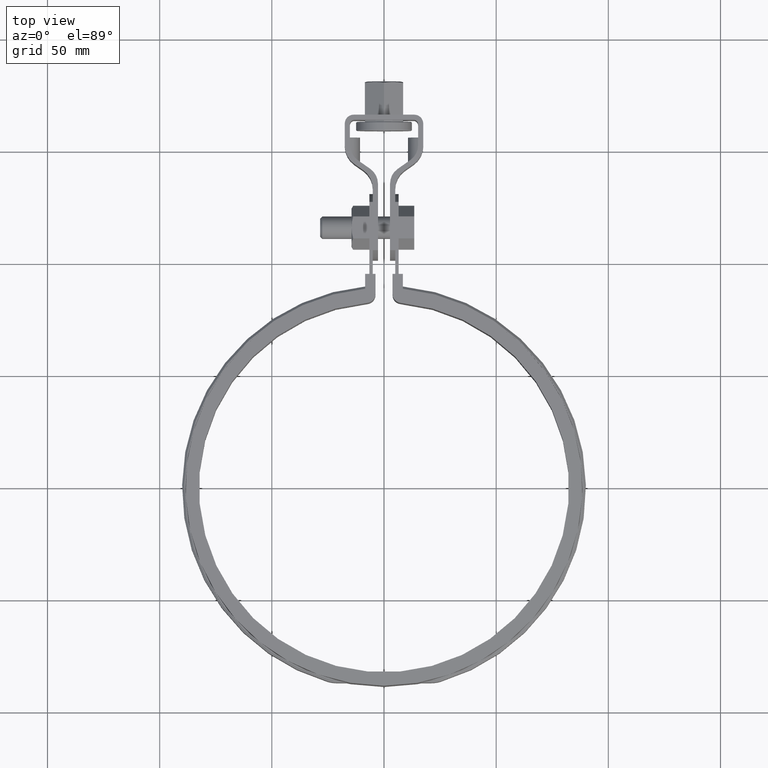
[diagram: clean part render]
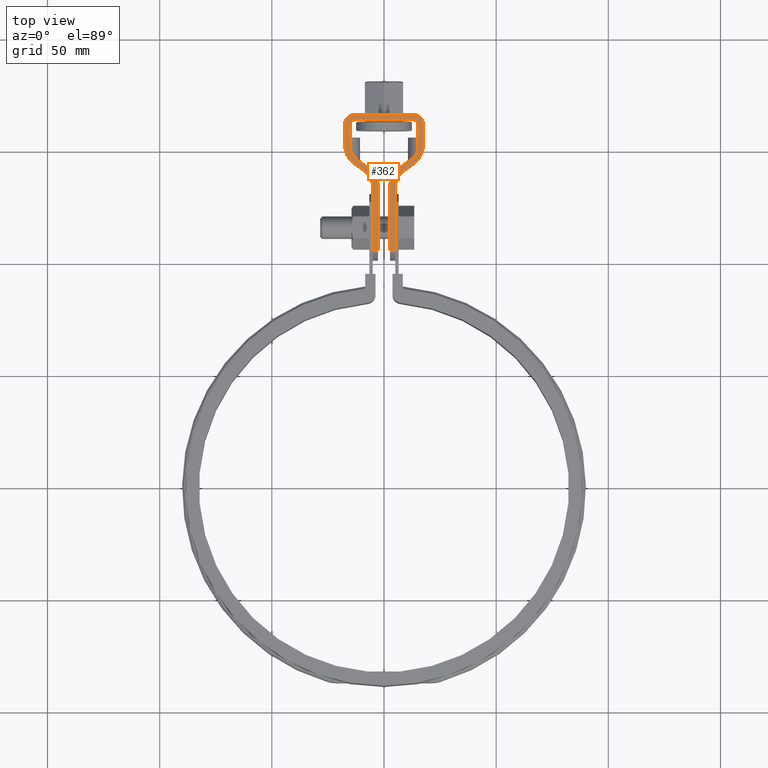
[diagram: same view with one face highlighted and labeled with its STEP entity id]
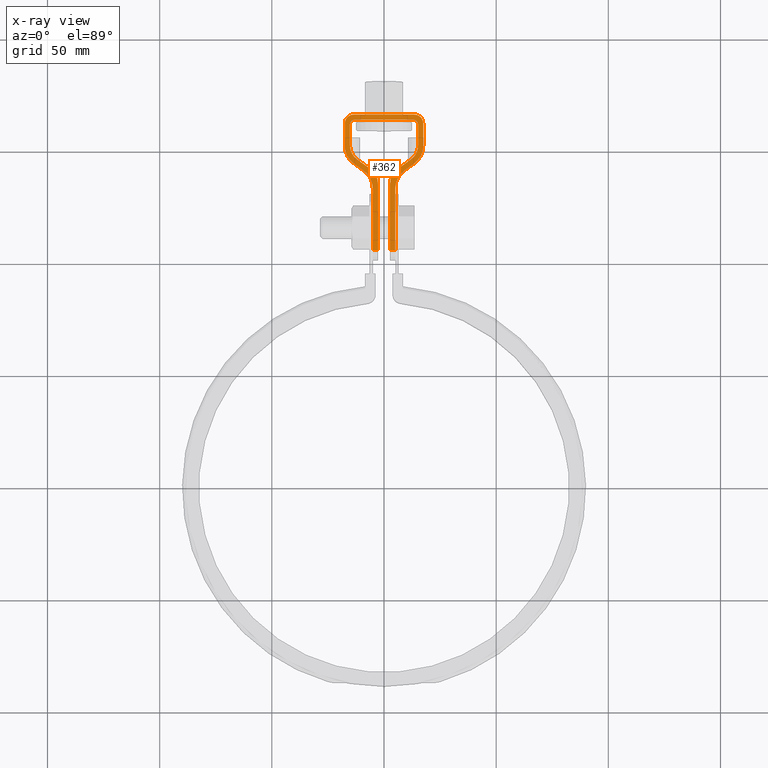
[diagram: x-ray of the same camera — body ghosted, the highlighted face saturated]
A machine part, top view. The second image highlights one B-rep face of the part: STEP entity #362.
The next image is the same camera in x-ray: the body ghosted, the highlighted face saturated — about 0% of this face is hidden behind the body in this view.
In plain terms, the highlighted planar face has unit normal (-0, 0, 1).
Its self-contained STEP definition (entity closure, byte-faithful):
#362 = ADVANCED_FACE( '', ( #594 ), #595, .T. );
#594 = FACE_OUTER_BOUND( '', #1356, .T. );
#595 = PLANE( '', #1357 );
#1356 = EDGE_LOOP( '', ( #3159, #3160, #3161, #3162, #3163, #3164, #3165, #3166, #3167, #3168, #3169, #3170, #3171, #3172, #3173, #3174, #3175, #3176, #3177, #3178, #3179, #3180, #3181, #3182, #3183, #3184, #3185, #3186 ) );
#1357 = AXIS2_PLACEMENT_3D( '', #3187, #3188, #3189 );
#3159 = ORIENTED_EDGE( '', *, *, #5114, .T. );
#3160 = ORIENTED_EDGE( '', *, *, #5115, .T. );
#3161 = ORIENTED_EDGE( '', *, *, #5116, .T. );
#3162 = ORIENTED_EDGE( '', *, *, #5117, .T. );
#3163 = ORIENTED_EDGE( '', *, *, #5118, .T. );
#3164 = ORIENTED_EDGE( '', *, *, #5112, .T. );
#3165 = ORIENTED_EDGE( '', *, *, #5108, .T. );
#3166 = ORIENTED_EDGE( '', *, *, #5119, .T. );
#3167 = ORIENTED_EDGE( '', *, *, #5120, .T. );
#3168 = ORIENTED_EDGE( '', *, *, #5102, .T. );
#3169 = ORIENTED_EDGE( '', *, *, #5095, .T. );
#3170 = ORIENTED_EDGE( '', *, *, #5085, .T. );
#3171 = ORIENTED_EDGE( '', *, *, #5094, .T. );
#3172 = ORIENTED_EDGE( '', *, *, #5099, .T. );
#3173 = ORIENTED_EDGE( '', *, *, #5121, .T. );
#3174 = ORIENTED_EDGE( '', *, *, #5122, .T. );
#3175 = ORIENTED_EDGE( '', *, *, #5123, .T. );
#3176 = ORIENTED_EDGE( '', *, *, #5124, .T. );
#3177 = ORIENTED_EDGE( '', *, *, #5125, .T. );
#3178 = ORIENTED_EDGE( '', *, *, #5055, .T. );
#3179 = ORIENTED_EDGE( '', *, *, #5052, .T. );
#3180 = ORIENTED_EDGE( '', *, *, #5042, .T. );
#3181 = ORIENTED_EDGE( '', *, *, #5126, .T. );
#3182 = ORIENTED_EDGE( '', *, *, #5127, .T. );
#3183 = ORIENTED_EDGE( '', *, *, #5128, .T. );
#3184 = ORIENTED_EDGE( '', *, *, #5089, .T. );
#3185 = ORIENTED_EDGE( '', *, *, #5129, .T. );
#3186 = ORIENTED_EDGE( '', *, *, #5130, .T. );
#3187 = CARTESIAN_POINT( '', ( 13.4999999999999, 162.102813742387, -6.90419943438678E-013 ) );
#3188 = DIRECTION( '', ( -9.11521279052786E-016, 1.75137682134619E-013, 1.00000000000000 ) );
#3189 = DIRECTION( '', ( -3.03451482752472E-016, 1.00000000000000, -1.75137682134619E-013 ) );
#5042 = EDGE_CURVE( '', #5566, #5567, #5568, .T. );
#5052 = EDGE_CURVE( '', #5575, #5566, #5586, .T. );
#5055 = EDGE_CURVE( '', #5588, #5575, #5591, .T. );
#5085 = EDGE_CURVE( '', #5643, #5641, #5644, .T. );
#5089 = EDGE_CURVE( '', #5646, #5648, #5650, .T. );
#5094 = EDGE_CURVE( '', #5641, #5656, #5658, .T. );
#5095 = EDGE_CURVE( '', #5659, #5643, #5660, .T. );
#5099 = EDGE_CURVE( '', #5656, #5665, #5666, .T. );
#5102 = EDGE_CURVE( '', #5670, #5659, #5671, .T. );
#5108 = EDGE_CURVE( '', #5681, #5679, #5682, .T. );
#5112 = EDGE_CURVE( '', #5686, #5681, #5687, .T. );
#5114 = EDGE_CURVE( '', #5689, #5690, #5691, .T. );
#5115 = EDGE_CURVE( '', #5690, #5692, #5693, .F. );
#5116 = EDGE_CURVE( '', #5692, #5694, #5695, .T. );
#5117 = EDGE_CURVE( '', #5694, #5696, #5697, .T. );
#5118 = EDGE_CURVE( '', #5696, #5686, #5698, .T. );
#5119 = EDGE_CURVE( '', #5679, #5699, #5700, .T. );
#5120 = EDGE_CURVE( '', #5699, #5670, #5701, .T. );
#5121 = EDGE_CURVE( '', #5665, #5702, #5703, .T. );
#5122 = EDGE_CURVE( '', #5702, #5704, #5705, .F. );
#5123 = EDGE_CURVE( '', #5704, #5706, #5707, .T. );
#5124 = EDGE_CURVE( '', #5706, #5708, #5709, .T. );
#5125 = EDGE_CURVE( '', #5708, #5588, #5710, .T. );
#5126 = EDGE_CURVE( '', #5567, #5711, #5712, .T. );
#5127 = EDGE_CURVE( '', #5711, #5713, #5714, .T. );
#5128 = EDGE_CURVE( '', #5713, #5646, #5715, .T. );
#5129 = EDGE_CURVE( '', #5648, #5716, #5717, .T. );
#5130 = EDGE_CURVE( '', #5716, #5689, #5718, .T. );
#5566 = VERTEX_POINT( '', #7395 );
#5567 = VERTEX_POINT( '', #7396 );
#5568 = CIRCLE( '', #7397, 3.99999999999999 );
#5575 = VERTEX_POINT( '', #7406 );
#5586 = LINE( '', #7423, #7424 );
#5588 = VERTEX_POINT( '', #7426 );
#5591 = CIRCLE( '', #7449, 9.99999999999866 );
#5641 = VERTEX_POINT( '', #7613 );
#5643 = VERTEX_POINT( '', #7616 );
#5644 = CIRCLE( '', #7617, 7.99999999999997 );
#5646 = VERTEX_POINT( '', #7620 );
#5648 = VERTEX_POINT( '', #7623 );
#5650 = CIRCLE( '', #7626, 9.99999999999996 );
#5656 = VERTEX_POINT( '', #7634 );
#5658 = LINE( '', #7637, #7638 );
#5659 = VERTEX_POINT( '', #7639 );
#5660 = LINE( '', #7640, #7641 );
#5665 = VERTEX_POINT( '', #7649 );
#5666 = CIRCLE( '', #7650, 7.99999999999892 );
#5670 = VERTEX_POINT( '', #7655 );
#5671 = CIRCLE( '', #7656, 1.99999999999960 );
#5679 = VERTEX_POINT( '', #7667 );
#5681 = VERTEX_POINT( '', #7670 );
#5682 = LINE( '', #7671, #7672 );
#5686 = VERTEX_POINT( '', #7679 );
#5687 = CIRCLE( '', #7680, 7.99999999999892 );
#5689 = VERTEX_POINT( '', #7683 );
#5690 = VERTEX_POINT( '', #7684 );
#5691 = LINE( '', #7685, #7686 );
#5692 = VERTEX_POINT( '', #7687 );
#5693 = LINE( '', #7688, #7689 );
#5694 = VERTEX_POINT( '', #7690 );
#5695 = LINE( '', #7691, #7692 );
#5696 = VERTEX_POINT( '', #7693 );
#5697 = CIRCLE( '', #7694, 7.99999999999997 );
#5698 = LINE( '', #7695, #7696 );
#5699 = VERTEX_POINT( '', #7697 );
#5700 = CIRCLE( '', #7698, 1.99999999999999 );
#5701 = LINE( '', #7699, #7700 );
#5702 = VERTEX_POINT( '', #7701 );
#5703 = LINE( '', #7702, #7703 );
#5704 = VERTEX_POINT( '', #7704 );
#5705 = LINE( '', #7705, #7706 );
#5706 = VERTEX_POINT( '', #7707 );
#5707 = LINE( '', #7708, #7709 );
#5708 = VERTEX_POINT( '', #7710 );
#5709 = CIRCLE( '', #7711, 9.99999999999996 );
#5710 = LINE( '', #7712, #7713 );
#5711 = VERTEX_POINT( '', #7714 );
#5712 = LINE( '', #7715, #7716 );
#5713 = VERTEX_POINT( '', #7717 );
#5714 = CIRCLE( '', #7718, 3.99999999999920 );
#5715 = LINE( '', #7719, #7720 );
#5716 = VERTEX_POINT( '', #7721 );
#5717 = LINE( '', #7722, #7723 );
#5718 = CIRCLE( '', #7724, 9.99999999999866 );
#7395 = CARTESIAN_POINT( '', ( 17.4999999999999, 162.102813742387, -6.86950496486725E-013 ) );
#7396 = CARTESIAN_POINT( '', ( 13.4999999999999, 166.102813742386, -1.39124822773321E-012 ) );
#7397 = AXIS2_PLACEMENT_3D( '', #9585, #9586, #9587 );
#7406 = CARTESIAN_POINT( '', ( 17.4999999999999, 152.308484247907, 1.02695629777813E-012 ) );
#7423 = CARTESIAN_POINT( '', ( 17.4999999999999, 152.308484247907, 1.02695629777813E-012 ) );
#7424 = VECTOR( '', #9599, 999.999999999934 );
#7426 = CARTESIAN_POINT( '', ( 13.2357643635104, 144.116963805018, 2.45636844198283E-012 ) );
#7449 = AXIS2_PLACEMENT_3D( '', #9601, #9602, #9603 );
#7613 = CARTESIAN_POINT( '', ( 11.7886114908083, 145.911438008762, 2.14064876935510E-012 ) );
#7616 = CARTESIAN_POINT( '', ( 15.1999999999999, 152.464654363072, 9.95731275210555E-013 ) );
#7617 = AXIS2_PLACEMENT_3D( '', #9651, #9652, #9653 );
#7620 = CARTESIAN_POINT( '', ( -17.4999999999999, 152.308484247907, 9.92261828258602E-013 ) );
#7623 = CARTESIAN_POINT( '', ( -13.2357643635104, 144.116963805018, 2.43555176027111E-012 ) );
#7626 = AXIS2_PLACEMENT_3D( '', #9657, #9658, #9659 );
#7634 = CARTESIAN_POINT( '', ( 6.11138850919161, 141.936203680937, 2.83453815974573E-012 ) );
#7637 = CARTESIAN_POINT( '', ( 11.7886114908083, 145.911438008761, 2.14064876935510E-012 ) );
#7638 = VECTOR( '', #9666, 1000.00000000006 );
#7639 = CARTESIAN_POINT( '', ( 15.1999999999999, 161.802813742387, -6.38378239159380E-013 ) );
#7640 = CARTESIAN_POINT( '', ( 15.1999999999999, 161.802813742387, -6.38378239159380E-013 ) );
#7641 = VECTOR( '', #9667, 999.999999999934 );
#7649 = CARTESIAN_POINT( '', ( 2.69999999999999, 135.382987326626, 3.97945565389027E-012 ) );
#7650 = AXIS2_PLACEMENT_3D( '', #9671, #9672, #9673 );
#7655 = CARTESIAN_POINT( '', ( 13.1999999999999, 163.802813742387, -9.92261828258602E-013 ) );
#7656 = AXIS2_PLACEMENT_3D( '', #9678, #9679, #9680 );
#7667 = CARTESIAN_POINT( '', ( -15.2000000000000, 161.802813742387, -6.66133814775006E-013 ) );
#7670 = CARTESIAN_POINT( '', ( -15.2000000000000, 152.464654363072, 9.67975699594930E-013 ) );
#7671 = CARTESIAN_POINT( '', ( -15.2000000000000, 152.464654363072, 9.67975699594930E-013 ) );
#7672 = VECTOR( '', #9688, 999.999999999934 );
#7679 = CARTESIAN_POINT( '', ( -11.7886114908083, 145.911438008761, 2.11983208764338E-012 ) );
#7680 = AXIS2_PLACEMENT_3D( '', #9692, #9693, #9694 );
#7683 = CARTESIAN_POINT( '', ( -4.99999999999996, 133.144549009254, 4.36456426555707E-012 ) );
#7684 = CARTESIAN_POINT( '', ( -4.99999999999997, 105.725658661499, 9.14893161230047E-012 ) );
#7685 = CARTESIAN_POINT( '', ( -4.99999999999999, 133.144549009254, 4.36456426555707E-012 ) );
#7686 = VECTOR( '', #9696, 999.999999999934 );
#7687 = CARTESIAN_POINT( '', ( -2.69999999999999, 105.725658661499, 9.16627884706023E-012 ) );
#7688 = CARTESIAN_POINT( '', ( 81.1487655465074, 105.725658661499, 9.24260668000320E-012 ) );
#7689 = VECTOR( '', #9697, 1000.00000000013 );
#7690 = CARTESIAN_POINT( '', ( -2.70000000000000, 135.382987326626, 3.97251675998636E-012 ) );
#7691 = CARTESIAN_POINT( '', ( -2.69999999999999, 101.102813742399, 9.97465998686532E-012 ) );
#7692 = VECTOR( '', #9698, 999.999999999934 );
#7693 = CARTESIAN_POINT( '', ( -6.11138850919161, 141.936203680937, 2.82066037193791E-012 ) );
#7694 = AXIS2_PLACEMENT_3D( '', #9699, #9700, #9701 );
#7695 = CARTESIAN_POINT( '', ( -6.11138850919164, 141.936203680937, 2.82066037193791E-012 ) );
#7696 = VECTOR( '', #9702, 1000.00000000006 );
#7697 = CARTESIAN_POINT( '', ( -13.2000000000000, 163.802813742387, -1.01307850997032E-012 ) );
#7698 = AXIS2_PLACEMENT_3D( '', #9703, #9704, #9705 );
#7699 = CARTESIAN_POINT( '', ( -13.2000000000000, 163.802813742387, -1.01307850997032E-012 ) );
#7700 = VECTOR( '', #9706, 1000.00000000013 );
#7701 = CARTESIAN_POINT( '', ( 2.70000000000000, 105.725658661499, 9.15933995315633E-012 ) );
#7702 = CARTESIAN_POINT( '', ( 2.69999999999998, 135.382987326626, 3.97945565389027E-012 ) );
#7703 = VECTOR( '', #9707, 999.999999999934 );
#7704 = CARTESIAN_POINT( '', ( 4.99999999999998, 105.725658661499, 9.17321774096414E-012 ) );
#7705 = CARTESIAN_POINT( '', ( 81.1487655465074, 105.725658661499, 9.24260668000320E-012 ) );
#7706 = VECTOR( '', #9708, 1000.00000000013 );
#7707 = CARTESIAN_POINT( '', ( 4.99999999999998, 133.144549009254, 4.37150315946097E-012 ) );
#7708 = CARTESIAN_POINT( '', ( 4.99999999999998, 101.102813742399, 9.98159888076922E-012 ) );
#7709 = VECTOR( '', #9709, 999.999999999934 );
#7710 = CARTESIAN_POINT( '', ( 9.26423563648950, 141.336069452142, 2.93862156830432E-012 ) );
#7711 = AXIS2_PLACEMENT_3D( '', #9710, #9711, #9712 );
#7712 = CARTESIAN_POINT( '', ( 9.26423563648948, 141.336069452142, 2.93862156830432E-012 ) );
#7713 = VECTOR( '', #9713, 1000.00000000006 );
#7714 = CARTESIAN_POINT( '', ( -13.5000000000000, 166.102813742386, -1.41900380334884E-012 ) );
#7715 = CARTESIAN_POINT( '', ( 13.4999999999999, 166.102813742386, -1.39124822773321E-012 ) );
#7716 = VECTOR( '', #9714, 1000.00000000013 );
#7717 = CARTESIAN_POINT( '', ( -17.5000000000000, 162.102813742387, -7.21644966006256E-013 ) );
#7718 = AXIS2_PLACEMENT_3D( '', #9715, #9716, #9717 );
#7719 = CARTESIAN_POINT( '', ( -17.5000000000000, 162.102813742387, -7.21644966006256E-013 ) );
#7720 = VECTOR( '', #9718, 999.999999999934 );
#7721 = CARTESIAN_POINT( '', ( -9.26423563648951, 141.336069452142, 2.92474378049651E-012 ) );
#7722 = CARTESIAN_POINT( '', ( -13.2357643635104, 144.116963805018, 2.43555176027111E-012 ) );
#7723 = VECTOR( '', #9719, 1000.00000000006 );
#7724 = AXIS2_PLACEMENT_3D( '', #9720, #9721, #9722 );
#9585 = CARTESIAN_POINT( '', ( 13.4999999999999, 162.102813742387, -6.90419943438678E-013 ) );
#9586 = DIRECTION( '', ( -9.11521279052786E-016, 1.75137682134619E-013, 1.00000000000000 ) );
#9587 = DIRECTION( '', ( 1.00000000000000, 8.66110482555733E-017, 9.11521279052771E-016 ) );
#9599 = DIRECTION( '', ( -2.34062543713386E-016, 1.00000000000000, -1.75137682134619E-013 ) );
#9601 = CARTESIAN_POINT( '', ( 7.49999999999996, 152.308484247907, 1.01654795692227E-012 ) );
#9602 = DIRECTION( '', ( -9.11521279052776E-016, 1.75137682134619E-013, 1.00000000000000 ) );
#9603 = DIRECTION( '', ( 0.573576436351121, -0.819152044288939, 1.43987217479497E-013 ) );
#9651 = CARTESIAN_POINT( '', ( 7.19999999999996, 152.464654363072, 9.88792381306649E-013 ) );
#9652 = DIRECTION( '', ( 9.11521279052786E-016, -1.75137682134619E-013, -1.00000000000000 ) );
#9653 = DIRECTION( '', ( 1.00000000000000, 3.03451482752632E-016, 9.11521279052733E-016 ) );
#9657 = CARTESIAN_POINT( '', ( -7.49999999999998, 152.308484247907, 1.00267016911446E-012 ) );
#9658 = DIRECTION( '', ( -9.11521279052786E-016, 1.75137682134619E-013, 1.00000000000000 ) );
#9659 = DIRECTION( '', ( -1.00000000000000, -4.76923830350279E-016, -9.11521279052702E-016 ) );
#9666 = DIRECTION( '', ( -0.819152044289044, -0.573576436350971, 9.97081730703950E-014 ) );
#9667 = DIRECTION( '', ( 2.42736161093272E-016, -1.00000000000000, 1.75137682134619E-013 ) );
#9671 = CARTESIAN_POINT( '', ( 10.7000000000000, 135.382987326626, 3.98639454779417E-012 ) );
#9672 = DIRECTION( '', ( -9.11521279052808E-016, 1.75137682134619E-013, 1.00000000000000 ) );
#9673 = DIRECTION( '', ( -0.573576436351121, 0.819152044288939, -1.43987217479497E-013 ) );
#9678 = CARTESIAN_POINT( '', ( 13.1999999999999, 161.802813742387, -6.41847686111334E-013 ) );
#9679 = DIRECTION( '', ( 9.11521279052786E-016, -1.75137682134619E-013, -1.00000000000000 ) );
#9680 = DIRECTION( '', ( -3.03451482752472E-016, 1.00000000000000, -1.75137682134619E-013 ) );
#9688 = DIRECTION( '', ( -2.42736161093272E-016, 1.00000000000000, -1.75137682134619E-013 ) );
#9692 = CARTESIAN_POINT( '', ( -7.20000000000000, 152.464654363072, 9.74914593498836E-013 ) );
#9693 = DIRECTION( '', ( 9.11521279052757E-016, -1.75137682134619E-013, -1.00000000000000 ) );
#9694 = DIRECTION( '', ( -0.573576436351121, -0.819152044288940, 1.42941563225702E-013 ) );
#9696 = DIRECTION( '', ( 2.42736161093272E-016, -1.00000000000000, 1.75137682134619E-013 ) );
#9697 = DIRECTION( '', ( -1.00000000000000, -3.03451482752664E-016, -1.09521223212605E-015 ) );
#9698 = DIRECTION( '', ( -2.42736161093272E-016, 1.00000000000000, -1.75137682134619E-013 ) );
#9699 = CARTESIAN_POINT( '', ( -10.7000000000000, 135.382987326626, 3.96557786608246E-012 ) );
#9700 = DIRECTION( '', ( -9.11521279052786E-016, 1.75137682134619E-013, 1.00000000000000 ) );
#9701 = DIRECTION( '', ( 1.00000000000000, 3.03451482752632E-016, 9.11521279052733E-016 ) );
#9702 = DIRECTION( '', ( -0.819152044289045, 0.573576436350971, -1.01201522108693E-013 ) );
#9703 = CARTESIAN_POINT( '', ( -13.2000000000000, 161.802813742387, -6.62664367823052E-013 ) );
#9704 = DIRECTION( '', ( 9.11521279052786E-016, -1.75137682134619E-013, -1.00000000000000 ) );
#9705 = DIRECTION( '', ( -1.00000000000000, -3.03451482752632E-016, -9.11521279052733E-016 ) );
#9706 = DIRECTION( '', ( 1.00000000000000, 3.03451482752632E-016, 9.11521279052733E-016 ) );
#9707 = DIRECTION( '', ( 2.42736161093272E-016, -1.00000000000000, 1.75137682134619E-013 ) );
#9708 = DIRECTION( '', ( -1.00000000000000, -3.03451482752664E-016, -1.09521223212605E-015 ) );
#9709 = DIRECTION( '', ( -2.42736161093272E-016, 1.00000000000000, -1.75137682134619E-013 ) );
#9710 = CARTESIAN_POINT( '', ( 14.9999999999999, 133.144549009254, 4.38191150031683E-012 ) );
#9711 = DIRECTION( '', ( 9.11521279052786E-016, -1.75137682134619E-013, -1.00000000000000 ) );
#9712 = DIRECTION( '', ( -1.00000000000000, -3.03451482752632E-016, -9.11521279052733E-016 ) );
#9713 = DIRECTION( '', ( 0.819152044289044, 0.573576436350971, -9.97081730703950E-014 ) );
#9714 = DIRECTION( '', ( -1.00000000000000, -3.03451482752632E-016, -9.11521279052733E-016 ) );
#9715 = CARTESIAN_POINT( '', ( -13.5000000000000, 162.102813742387, -7.18175519054303E-013 ) );
#9716 = DIRECTION( '', ( -9.11521279052786E-016, 1.75137682134619E-013, 1.00000000000000 ) );
#9717 = DIRECTION( '', ( -3.03451482752472E-016, 1.00000000000000, -1.75137682134619E-013 ) );
#9718 = DIRECTION( '', ( 2.34062543713386E-016, -1.00000000000000, 1.75137682134619E-013 ) );
#9719 = DIRECTION( '', ( 0.819152044289045, -0.573576436350971, 1.01201522108693E-013 ) );
#9720 = CARTESIAN_POINT( '', ( -14.9999999999999, 133.144549009254, 4.35415592470121E-012 ) );
#9721 = DIRECTION( '', ( 9.11521279052792E-016, -1.75137682134619E-013, -1.00000000000000 ) );
#9722 = DIRECTION( '', ( 0.573576436351121, 0.819152044288939, -1.42941563225702E-013 ) );